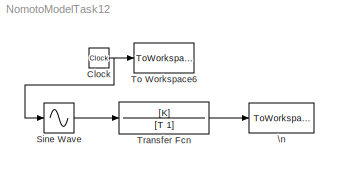
MODEL NomotoModelTask12
KIND model
BLOCK [Clock] Clock
  SID = 2
BLOCK [Sin] Sine Wave
  Amplitude = -amp
  Frequency = omega_d
  Ports = [1, 1]
  SID = 3
  SampleTime = 0
  TimeSource = Use external signal
BLOCK [ToWorkspace] To Workspace6
  MaxDataPoints = inf
  Ports = [1]
  SID = 4
  SampleTime = tsamp
  VariableName = t
BLOCK [TransferFcn] Transfer Fcn
  Denominator = [T 1]
  Numerator = [K]
  SID = 5
BLOCK [ToWorkspace] \n
  MaxDataPoints = inf
  Ports = [1]
  SID = 1
  SampleTime = -1
  VariableName = nomotoresult
NET Clock:1 -> Sine Wave:1, To Workspace6:1
LINE Sine Wave:1 -> Transfer Fcn:1
LINE Transfer Fcn:1 -> \n:1
note: NET lines group one-source signal fan-out (src -> all destinations, sorted); 1:1 wires keep LINE
